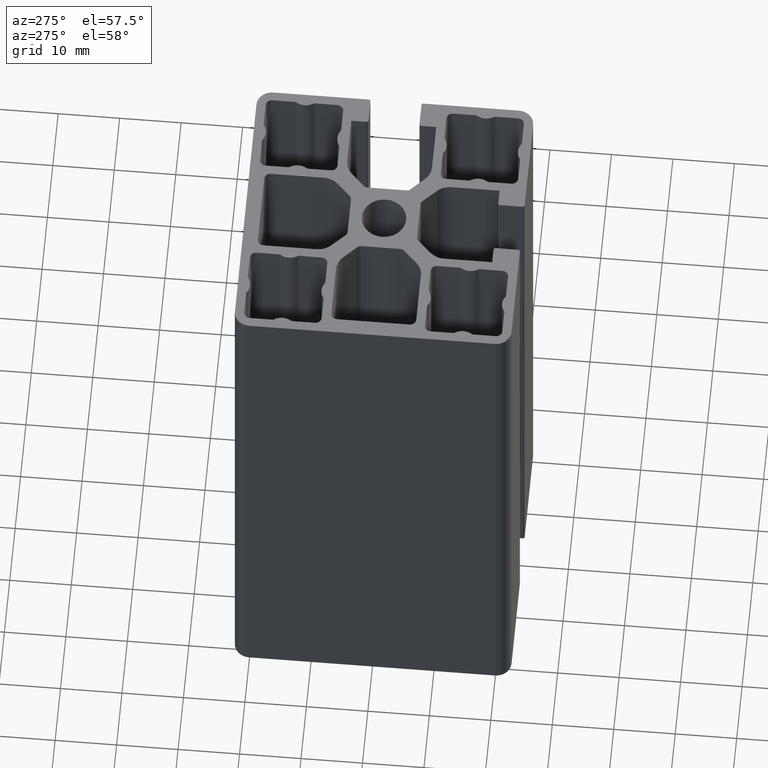
[diagram: clean part render]
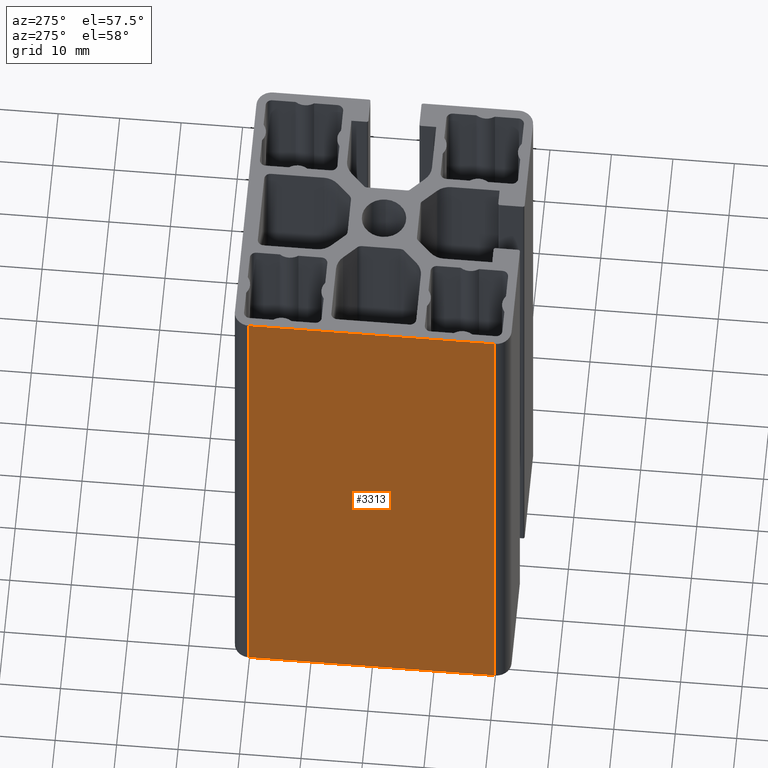
[diagram: same view with one face highlighted and labeled with its STEP entity id]
A machine part, auxiliary view. The second image highlights one B-rep face of the part: STEP entity #3313.
In plain terms, the highlighted planar face has unit normal (-1, 0, 0).
Its self-contained STEP definition (entity closure, byte-faithful):
#482=FACE_OUTER_BOUND('',#657,.T.);
#657=EDGE_LOOP('',(#2897,#2898,#2899,#2900));
#957=LINE('',#5662,#1257);
#963=LINE('',#5679,#1263);
#964=LINE('',#5683,#1264);
#965=LINE('',#5684,#1265);
#1257=VECTOR('',#4663,40.);
#1263=VECTOR('',#4681,100.);
#1264=VECTOR('',#4686,100.);
#1265=VECTOR('',#4687,40.);
#1590=VERTEX_POINT('',#5659);
#1591=VERTEX_POINT('',#5661);
#1596=VERTEX_POINT('',#5678);
#1597=VERTEX_POINT('',#5682);
#2075=EDGE_CURVE('',#1591,#1590,#957,.T.);
#2084=EDGE_CURVE('',#1596,#1591,#963,.T.);
#2086=EDGE_CURVE('',#1597,#1590,#964,.T.);
#2087=EDGE_CURVE('',#1596,#1597,#965,.T.);
#2897=ORIENTED_EDGE('',*,*,#2075,.T.);
#2898=ORIENTED_EDGE('',*,*,#2086,.F.);
#2899=ORIENTED_EDGE('',*,*,#2087,.F.);
#2900=ORIENTED_EDGE('',*,*,#2084,.T.);
#3148=PLANE('',#3674);
#3313=ADVANCED_FACE('',(#482),#3148,.T.);
#3674=AXIS2_PLACEMENT_3D('',#5681,#4684,#4685);
#4663=DIRECTION('',(2.22044604925031E-16,1.,0.));
#4681=DIRECTION('',(0.,0.,1.));
#4684=DIRECTION('center_axis',(-1.,2.22044604925031E-16,0.));
#4685=DIRECTION('ref_axis',(-3.5527136788005E-16,-1.,0.));
#4686=DIRECTION('',(0.,0.,1.));
#4687=DIRECTION('',(2.22044604925031E-16,1.,0.));
#5659=CARTESIAN_POINT('',(-22.5,20.,100.));
#5661=CARTESIAN_POINT('',(-22.5,-20.,100.));
#5662=CARTESIAN_POINT('',(-22.5,10.,100.));
#5678=CARTESIAN_POINT('',(-22.5,-20.,0.));
#5679=CARTESIAN_POINT('',(-22.5,-20.,0.));
#5681=CARTESIAN_POINT('Origin',(-22.5,20.,0.));
#5682=CARTESIAN_POINT('',(-22.5,20.,0.));
#5683=CARTESIAN_POINT('',(-22.5,20.,0.));
#5684=CARTESIAN_POINT('',(-22.5,10.,0.));